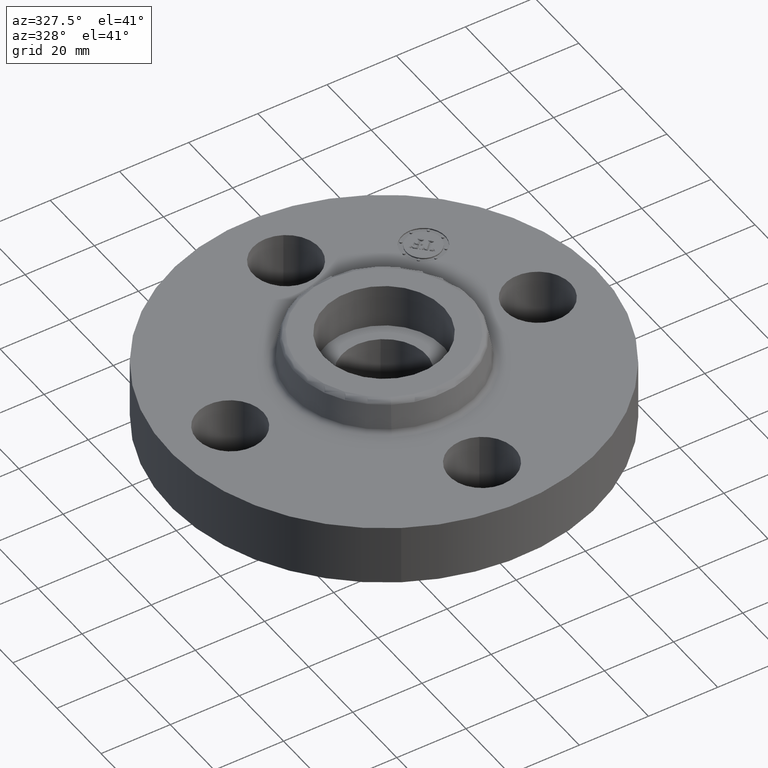
[diagram: clean part render]
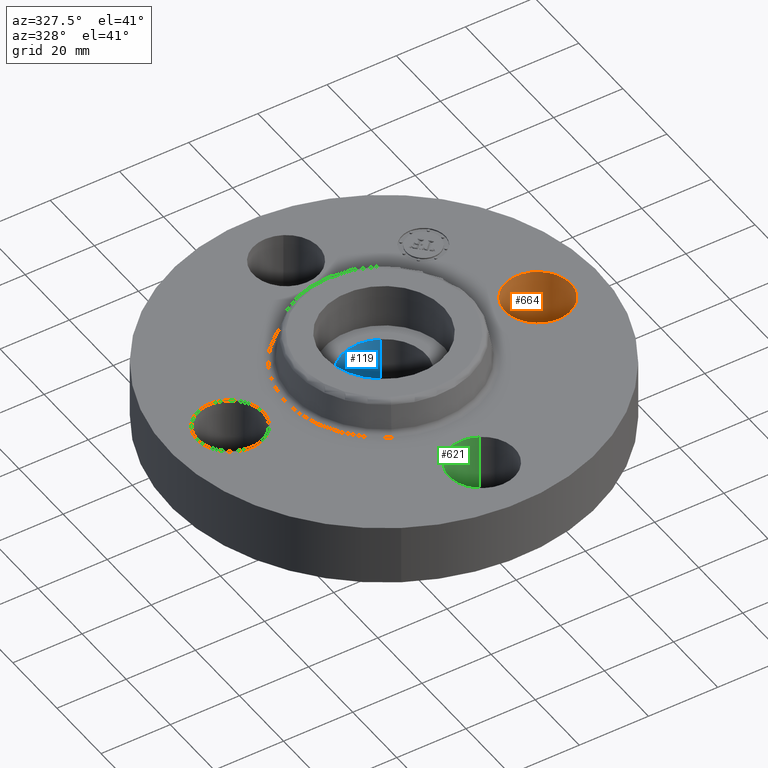
[diagram: same view with three faces highlighted in distinct colors, each labeled with its STEP entity id]
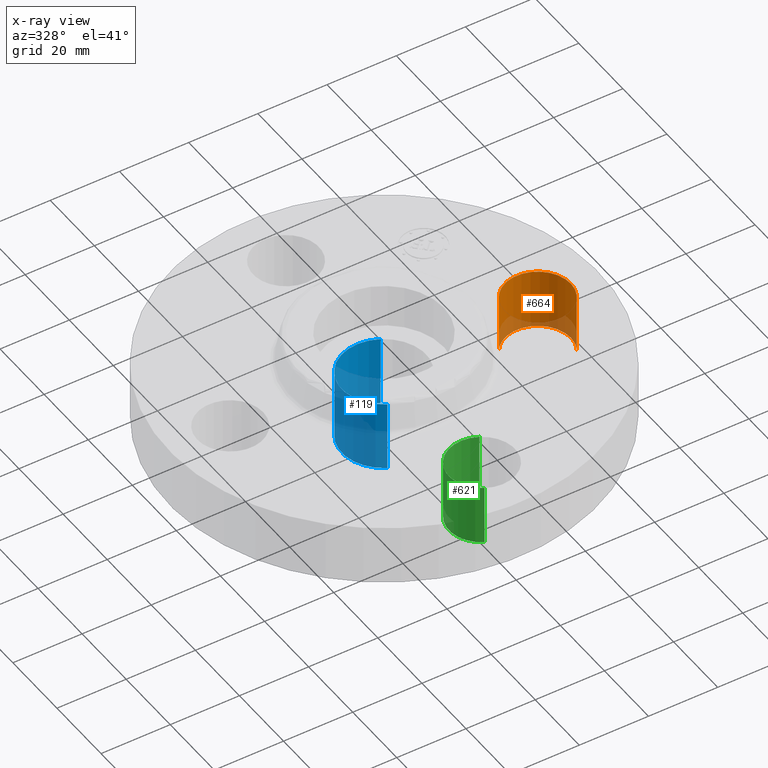
[diagram: x-ray of the same camera — body ghosted, the three highlighted faces saturated]
A machine part, auxiliary view with three faces highlighted in distinct colors.
The next image is the same camera in x-ray (body ghosted, the three faces saturated) — at least one of them is partly hidden behind the body in this view.
Their STEP definitions:

[orange] entity #664 — the highlighted cylindrical surface (partial cylindrical patch) has radius 9.525 mm, axis along (0, -0, -1).
#225=AXIS2_PLACEMENT_3D('Circle Axis2P3D',#223,#224,$) ;
#637=AXIS2_PLACEMENT_3D('Cylinder Axis2P3D',#634,#635,#636) ;
#655=AXIS2_PLACEMENT_3D('Circle Axis2P3D',#653,#654,$) ;
#218=CARTESIAN_POINT('Vertex',(2.07909346072,-0.179784576977,0.)) ;
#220=CARTESIAN_POINT('Vertex',(1.4209065393,0.179784576977,0.)) ;
#223=CARTESIAN_POINT('Axis2P3D Location',(1.75000000001,1.39870617276E-016,0.)) ;
#634=CARTESIAN_POINT('Axis2P3D Location',(1.75000000001,0.,0.686062992129)) ;
#639=CARTESIAN_POINT('Line Origine',(1.4209065393,0.179784576977,0.345000000001)) ;
#643=CARTESIAN_POINT('Vertex',(1.4209065393,0.179784576977,0.690000000003)) ;
#646=CARTESIAN_POINT('Line Origine',(2.07909346072,-0.179784576977,0.345000000001)) ;
#650=CARTESIAN_POINT('Vertex',(2.07909346072,-0.179784576977,0.690000000003)) ;
#653=CARTESIAN_POINT('Axis2P3D Location',(1.75000000001,0.,0.690000000003)) ;
#224=DIRECTION('Axis2P3D Direction',(0.,0.,-0.0393700787402)) ;
#635=DIRECTION('Axis2P3D Direction',(0.,-0.,-0.0393700787402)) ;
#636=DIRECTION('Axis2P3D XDirection',(0.0345504945626,-0.0188750212049,0.)) ;
#640=DIRECTION('Vector Direction',(0.,0.,-0.0393700787402)) ;
#647=DIRECTION('Vector Direction',(0.,0.,-0.0393700787402)) ;
#654=DIRECTION('Axis2P3D Direction',(0.,-0.,-0.0393700787402)) ;
#641=VECTOR('Line Direction',#640,0.0393700787402) ;
#648=VECTOR('Line Direction',#647,0.0393700787402) ;
#659=ORIENTED_EDGE('',*,*,#645,.F.) ;
#660=ORIENTED_EDGE('',*,*,#227,.T.) ;
#661=ORIENTED_EDGE('',*,*,#652,.T.) ;
#662=ORIENTED_EDGE('',*,*,#657,.F.) ;
#664=ADVANCED_FACE('PartBody',(#663),#638,.F.) ;
#226=CIRCLE('generated circle',#225,0.375000000001) ;
#656=CIRCLE('generated circle',#655,0.375000000001) ;
#638=CYLINDRICAL_SURFACE('generated cylinder',#637,0.375000000001) ;
#227=EDGE_CURVE('',#221,#219,#226,.T.) ;
#645=EDGE_CURVE('',#221,#644,#642,.F.) ;
#652=EDGE_CURVE('',#219,#651,#649,.F.) ;
#657=EDGE_CURVE('',#644,#651,#656,.T.) ;
#658=EDGE_LOOP('',(#659,#660,#661,#662)) ;
#663=FACE_OUTER_BOUND('',#658,.T.) ;
#642=LINE('Line',#639,#641) ;
#649=LINE('Line',#646,#648) ;
#219=VERTEX_POINT('',#218) ;
#221=VERTEX_POINT('',#220) ;
#644=VERTEX_POINT('',#643) ;
#651=VERTEX_POINT('',#650) ;

[blue] entity #119 — the highlighted cylindrical surface (partial cylindrical patch) has radius 12.1539 mm, axis along (0, 0, -1).
#60=AXIS2_PLACEMENT_3D('Circle Axis2P3D',#58,#59,$) ;
#80=AXIS2_PLACEMENT_3D('Cylinder Axis2P3D',#77,#78,#79) ;
#110=AXIS2_PLACEMENT_3D('Circle Axis2P3D',#108,#109,$) ;
#58=CARTESIAN_POINT('Axis2P3D Location',(6.99353086378E-017,-1.74838271595E-017,0.560000000002)) ;
#62=CARTESIAN_POINT('Vertex',(-0.229405120223,-0.419923255866,0.560000000002)) ;
#64=CARTESIAN_POINT('Vertex',(0.229405120223,0.419923255866,0.560000000002)) ;
#77=CARTESIAN_POINT('Axis2P3D Location',(0.,0.,0.405000000002)) ;
#82=CARTESIAN_POINT('Line Origine',(0.229405120223,0.419923255866,0.155000000001)) ;
#86=CARTESIAN_POINT('Vertex',(0.229405120223,0.419923255866,-0.250000000001)) ;
#93=CARTESIAN_POINT('Vertex',(-0.229405120223,-0.419923255866,-0.250000000001)) ;
#96=CARTESIAN_POINT('Line Origine',(-0.229405120223,-0.419923255866,0.155000000001)) ;
#108=CARTESIAN_POINT('Axis2P3D Location',(0.,0.,-0.250000000001)) ;
#59=DIRECTION('Axis2P3D Direction',(0.,0.,-0.0393700787402)) ;
#78=DIRECTION('Axis2P3D Direction',(0.,0.,-0.0393700787402)) ;
#79=DIRECTION('Axis2P3D XDirection',(-0.0188750212049,-0.0345504945626,0.)) ;
#83=DIRECTION('Vector Direction',(0.,0.,-0.0393700787402)) ;
#97=DIRECTION('Vector Direction',(0.,0.,-0.0393700787402)) ;
#109=DIRECTION('Axis2P3D Direction',(0.,0.,-0.0393700787402)) ;
#84=VECTOR('Line Direction',#83,0.0393700787402) ;
#98=VECTOR('Line Direction',#97,0.0393700787402) ;
#114=ORIENTED_EDGE('',*,*,#100,.T.) ;
#115=ORIENTED_EDGE('',*,*,#112,.T.) ;
#116=ORIENTED_EDGE('',*,*,#88,.F.) ;
#117=ORIENTED_EDGE('',*,*,#66,.F.) ;
#119=ADVANCED_FACE('PartBody',(#118),#81,.F.) ;
#61=CIRCLE('generated circle',#60,0.478500000002) ;
#111=CIRCLE('generated circle',#110,0.478500000002) ;
#81=CYLINDRICAL_SURFACE('generated cylinder',#80,0.478500000002) ;
#66=EDGE_CURVE('',#63,#65,#61,.T.) ;
#88=EDGE_CURVE('',#65,#87,#85,.T.) ;
#100=EDGE_CURVE('',#63,#94,#99,.T.) ;
#112=EDGE_CURVE('',#94,#87,#111,.T.) ;
#113=EDGE_LOOP('',(#114,#115,#116,#117)) ;
#118=FACE_OUTER_BOUND('',#113,.T.) ;
#85=LINE('Line',#82,#84) ;
#99=LINE('Line',#96,#98) ;
#63=VERTEX_POINT('',#62) ;
#65=VERTEX_POINT('',#64) ;
#87=VERTEX_POINT('',#86) ;
#94=VERTEX_POINT('',#93) ;

[green] entity #621 — the highlighted cylindrical surface (partial cylindrical patch) has radius 9.525 mm, axis along (0, -0, -1).
#247=AXIS2_PLACEMENT_3D('Circle Axis2P3D',#245,#246,$) ;
#594=AXIS2_PLACEMENT_3D('Cylinder Axis2P3D',#591,#592,#593) ;
#612=AXIS2_PLACEMENT_3D('Circle Axis2P3D',#610,#611,$) ;
#240=CARTESIAN_POINT('Vertex',(0.179784576977,-1.4209065393,0.)) ;
#242=CARTESIAN_POINT('Vertex',(-0.179784576977,-2.07909346072,0.)) ;
#245=CARTESIAN_POINT('Axis2P3D Location',(-3.49676543189E-016,-1.75000000001,0.)) ;
#591=CARTESIAN_POINT('Axis2P3D Location',(-1.72584639625E-016,-1.75000000001,0.686062992129)) ;
#596=CARTESIAN_POINT('Line Origine',(-0.179784576977,-2.07909346072,0.345000000001)) ;
#600=CARTESIAN_POINT('Vertex',(-0.179784576977,-2.07909346072,0.690000000003)) ;
#603=CARTESIAN_POINT('Line Origine',(0.179784576977,-1.4209065393,0.345000000001)) ;
#607=CARTESIAN_POINT('Vertex',(0.179784576977,-1.4209065393,0.690000000003)) ;
#610=CARTESIAN_POINT('Axis2P3D Location',(-1.72584639625E-016,-1.75000000001,0.690000000003)) ;
#246=DIRECTION('Axis2P3D Direction',(0.,0.,-0.0393700787402)) ;
#592=DIRECTION('Axis2P3D Direction',(0.,-0.,-0.0393700787402)) ;
#593=DIRECTION('Axis2P3D XDirection',(0.0188750212049,0.0345504945626,-0.)) ;
#597=DIRECTION('Vector Direction',(0.,0.,-0.0393700787402)) ;
#604=DIRECTION('Vector Direction',(0.,0.,-0.0393700787402)) ;
#611=DIRECTION('Axis2P3D Direction',(0.,-0.,-0.0393700787402)) ;
#598=VECTOR('Line Direction',#597,0.0393700787402) ;
#605=VECTOR('Line Direction',#604,0.0393700787402) ;
#616=ORIENTED_EDGE('',*,*,#602,.F.) ;
#617=ORIENTED_EDGE('',*,*,#249,.T.) ;
#618=ORIENTED_EDGE('',*,*,#609,.T.) ;
#619=ORIENTED_EDGE('',*,*,#614,.F.) ;
#621=ADVANCED_FACE('PartBody',(#620),#595,.F.) ;
#248=CIRCLE('generated circle',#247,0.375000000001) ;
#613=CIRCLE('generated circle',#612,0.375000000001) ;
#595=CYLINDRICAL_SURFACE('generated cylinder',#594,0.375000000001) ;
#249=EDGE_CURVE('',#243,#241,#248,.T.) ;
#602=EDGE_CURVE('',#243,#601,#599,.F.) ;
#609=EDGE_CURVE('',#241,#608,#606,.F.) ;
#614=EDGE_CURVE('',#601,#608,#613,.T.) ;
#615=EDGE_LOOP('',(#616,#617,#618,#619)) ;
#620=FACE_OUTER_BOUND('',#615,.T.) ;
#599=LINE('Line',#596,#598) ;
#606=LINE('Line',#603,#605) ;
#241=VERTEX_POINT('',#240) ;
#243=VERTEX_POINT('',#242) ;
#601=VERTEX_POINT('',#600) ;
#608=VERTEX_POINT('',#607) ;